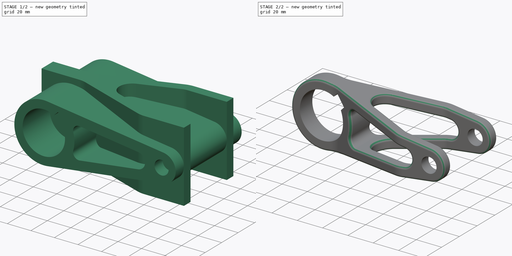
[diagram: build sequence overview — one tinted view per stage of 2, left to right]
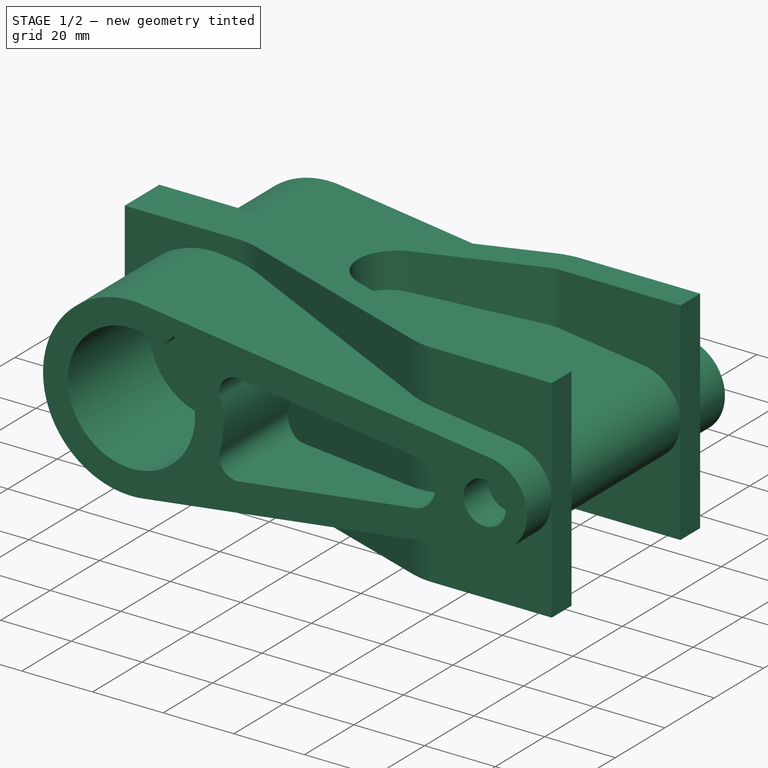
[diagram: stage 1 of 2 — iso view after this stage's code; geometry added in this stage tinted green]
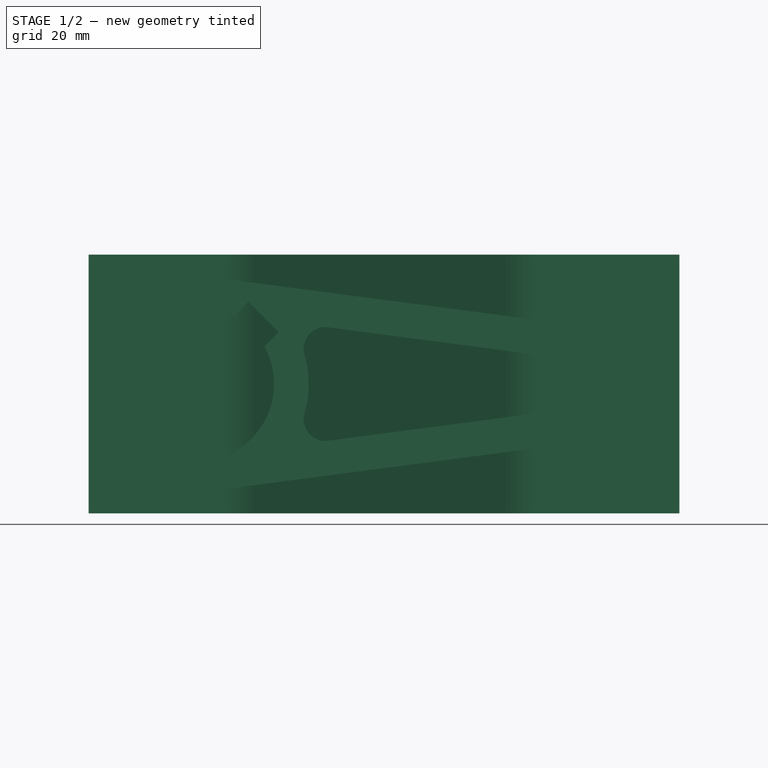
[diagram: stage 1 of 2 — front view after this stage's code; geometry added in this stage tinted green]
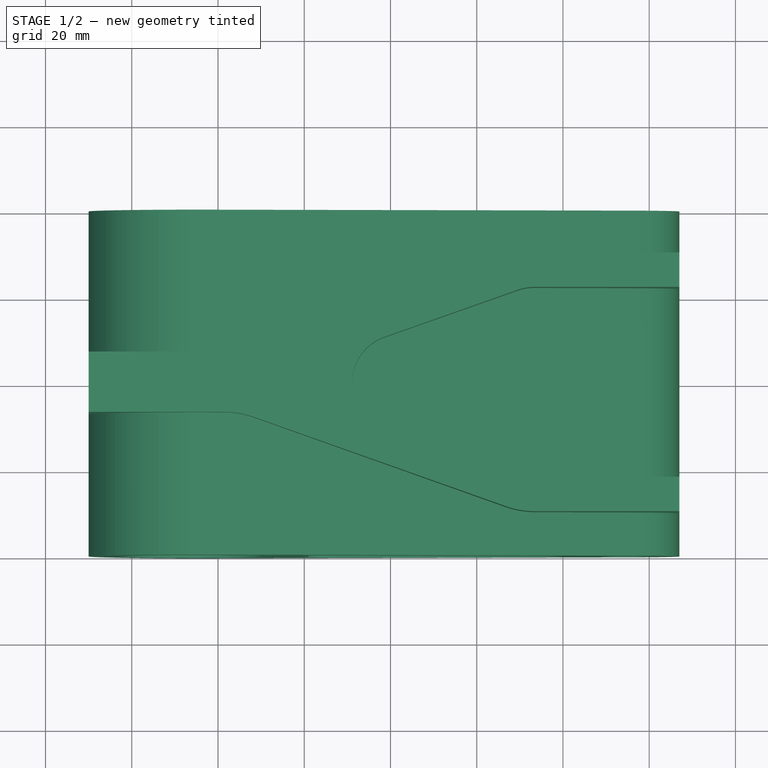
[diagram: stage 1 of 2 — top view after this stage's code; geometry added in this stage tinted green]
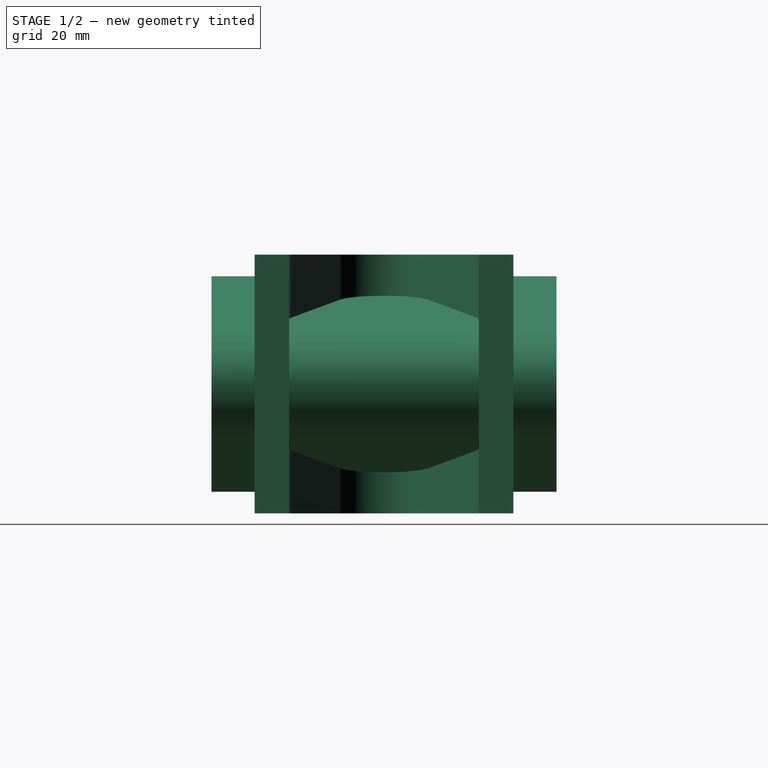
[diagram: stage 1 of 2 — right view after this stage's code; geometry added in this stage tinted green]
FCSTD DOCUMENT  (FreeCAD 1.0R39319 (Git))
Label: Mania2010
License: All rights reserved
LicenseURL: https://en.wikipedia.org/wiki/All_rights_reserved
objects: Sketcher::SketchObject×2, PartDesign::Pad×2, PartDesign::Body×2, PartDesign::Boolean×1, PartDesign::Fillet×1
note: 17 computed .brp shape members not serialized (recipe doc carries the construction recipe); baked Part::Feature solids carry a one-line shape summary decoded from their .brp

FEATURE [Sketcher::SketchObject] Sketch001
  ArcFitTolerance = 1e-06
  AttachmentSupport = -> [XY_Plane]
  FullyConstrained = true
  MakeInternals = false
  MapMode = 5
  sketch-geometry (27):
    g0: LineSegment StartX=-50 StartY=7 StartZ=0 EndX=-50 EndY=-7 EndZ=0
    g1: LineSegment StartX=-50 StartY=-7 StartZ=0 EndX=-18.4341 EndY=-7 EndZ=0
    g2: LineSegment StartX=-18.4341 StartY=7 StartZ=0 EndX=-50 EndY=7 EndZ=0
    g3: LineSegment StartX=-11.7626 StartY=8.14555 StartZ=0 EndX=46.7626 EndY=28.8544 EndZ=0
    g4: LineSegment StartX=53.4341 StartY=30 StartZ=0 EndX=87 EndY=30 EndZ=0
    g5: ArcOfCircle CenterX=-18.4341 CenterY=27 CenterZ=0 NormalX=0 NormalY=0 NormalZ=1 AngleXU=0 Radius=20 StartAngle=4.71239 EndAngle=5.05249
    g6: GeomPoint [constr] X=-15 Y=7 Z=0
    g7: ArcOfCircle CenterX=53.4341 CenterY=10 CenterZ=0 NormalX=0 NormalY=0 NormalZ=1 AngleXU=0 Radius=20 StartAngle=1.5708 EndAngle=1.91089
    g8: GeomPoint [constr] X=50 Y=30 Z=0
    g9: GeomPoint X=-25 Y=0 Z=0
    g10: ArcOfCircle CenterX=-18.4341 CenterY=-27 CenterZ=0 NormalX=0 NormalY=0 NormalZ=1 AngleXU=0 Radius=20 StartAngle=1.2307 EndAngle=1.5708
    g11: LineSegment StartX=-11.7626 StartY=-8.14555 StartZ=0 EndX=46.7626 EndY=-28.8544 EndZ=0
    g12: LineSegment StartX=53.4341 StartY=-30 StartZ=0 EndX=87 EndY=-30 EndZ=0
    g13: ArcOfCircle CenterX=53.4341 CenterY=-10 CenterZ=0 NormalX=0 NormalY=0 NormalZ=1 AngleXU=0 Radius=20 StartAngle=4.37229 EndAngle=4.71239
    g14: GeomPoint [constr] X=50 Y=-30 Z=0
    g15: LineSegment StartX=87 StartY=30 StartZ=0 EndX=87 EndY=22 EndZ=0
    g16: LineSegment StartX=87 StartY=-30 StartZ=0 EndX=87 EndY=-22 EndZ=0
    g17: LineSegment StartX=87 StartY=22 StartZ=0 EndX=53.2624 EndY=22 EndZ=0
    g18: LineSegment StartX=49.5931 StartY=21.3699 StartZ=0 EndX=18.5061 EndY=10.3699 EndZ=0
    g19: LineSegment StartX=18.5061 StartY=-10.3699 StartZ=0 EndX=49.5931 EndY=-21.3699 EndZ=0
    g20: LineSegment StartX=53.2624 StartY=-22 StartZ=0 EndX=87 EndY=-22 EndZ=0
    g21: ArcOfCircle CenterX=22.1755 CenterY=0 CenterZ=0 NormalX=0 NormalY=0 NormalZ=1 AngleXU=0 Radius=11 StartAngle=1.91089 EndAngle=4.37229
    g22: GeomPoint [constr] X=-10.8003 Y=0 Z=0
    g23: ArcOfCircle CenterX=53.2624 CenterY=11 CenterZ=0 NormalX=0 NormalY=0 NormalZ=1 AngleXU=0 Radius=11 StartAngle=1.5708 EndAngle=1.91089
    g24: GeomPoint [constr] X=51.3737 Y=22 Z=0
    g25: ArcOfCircle CenterX=53.2624 CenterY=-11 CenterZ=0 NormalX=0 NormalY=0 NormalZ=1 AngleXU=0 Radius=11 StartAngle=4.37229 EndAngle=4.71239
    g26: GeomPoint [constr] X=51.3737 Y=-22 Z=0
  constraints (65):
    c: Coincident(g0,g1)
    c: Coincident(g2,g0)
    c: Horizontal(g1)
    c: Horizontal(g2)
    c: DistanceY(g0,g0) = 14
    c: Symmetric(g0,g0,g-1)
    c: Horizontal(g4)
    c: PointOnObject(g6,g3)
    c: PointOnObject(g6,g2)
    c: Tangent(g3,g5) = -1.5708
    c: Tangent(g2,g5) = 1.5708
    c: Distance(g-1,g0) = 50
    c: Distance(g6,g0) = 35
    c: Radius(g5) = 20
    c: PointOnObject(g8,g4)
    c: PointOnObject(g8,g3)
    c: Tangent(g4,g7) = 1.5708
    c: Tangent(g3,g7) = 1.5708
    c: Radius(g7) = 20
    c: PointOnObject(g9,g-1)
    c: Distance(g9,g0) = 25
    c: DistanceX(g9,g8) = 75
    c: DistanceX(g9,g4) = 112
    c: DistanceY(g-1,g4) = 30
    c: Tangent(g1,g10) = 1.5708
    c: Horizontal(g12)
    c: Equal(g5,g10)
    c: Symmetric(g12,g4,g-1)
    c: Tangent(g10,g11) = 1.5708
    c: PointOnObject(g14,g12)
    c: PointOnObject(g14,g11)
    c: Tangent(g12,g13) = -1.5708
    c: Tangent(g11,g13) = -1.5708
    c: Equal(g7,g13)
    c: Equal(g1,g2)
    c: Equal(g11,g3)
    c: Coincident(g15,g4)
    c: Vertical(g15)
    c: DistanceY(g15,g15) = 8
    c: Coincident(g16,g12)
    c: Equal(g15,g16)
    c: Vertical(g16)
    c: Coincident(g15,g17)
    c: Horizontal(g17)
    c: PointOnObject(g22,g-1)
    c: Coincident(g20,g16)
    c: Horizontal(g20)
    c: PointOnObject(g22,g18)
    c: PointOnObject(g22,g19)
    c: Tangent(g18,g21) = -1.5708
    c: Tangent(g19,g21) = -1.5708
    c: PointOnObject(g24,g18)
    c: PointOnObject(g24,g17)
    c: Tangent(g18,g23) = -1.5708
    c: Tangent(g17,g23) = -1.5708
    c: PointOnObject(g26,g19)
    c: PointOnObject(g26,g20)
    c: Tangent(g19,g25) = -1.5708
    c: Tangent(g20,g25) = -1.5708
    c: Equal(g23,g21)
    c: Equal(g21,g25)
    c: Tangent(g23,g-1)
    c: PointOnObject(g21,g-1)
    c: Parallel(g18,g3)
    c: Distance(g18,g3) = 8
FEATURE [PartDesign::Pad] Pad
  Direction = (0,0,1)
  Length = 60
  Length2 = 10
  Midplane = true
  Profile = -> Sketch001
  ReferenceAxis = -> Sketch001 [N_Axis]
  Refine = true
  Suppressed = false
  Type = 0
FEATURE [Sketcher::SketchObject] Sketch
  ArcFitTolerance = 1e-06
  AttachmentSupport = -> [XZ_Plane001]
  FullyConstrained = true
  MakeInternals = false
  MapMode = 5
  Placement = pos=(0,0,0) rot=(1,0,0;1.5708rad)
  sketch-geometry (22):
    g0: GeomPoint X=-25 Y=0 Z=0
    g1: ArcOfCircle CenterX=-25 CenterY=0 CenterZ=0 NormalX=0 NormalY=0 NormalZ=1 AngleXU=0 Radius=25 StartAngle=1.44043 EndAngle=4.84276
    g2: ArcOfCircle CenterX=75 CenterY=0 CenterZ=0 NormalX=0 NormalY=0 NormalZ=1 AngleXU=0 Radius=12 StartAngle=4.84276 EndAngle=7.72361
    g3: LineSegment StartX=-21.75 StartY=24.7878 StartZ=0 EndX=76.56 EndY=11.8982 EndZ=0
    g4: LineSegment StartX=76.56 StartY=-11.8982 StartZ=0 EndX=-21.75 EndY=-24.7878 EndZ=0
    g5: Circle CenterX=75 CenterY=0 CenterZ=0 NormalX=0 NormalY=0 NormalZ=1 AngleXU=0 Radius=6
    g6: ArcOfCircle CenterX=-25 CenterY=0 CenterZ=0 NormalX=0 NormalY=0 NormalZ=1 AngleXU=0 Radius=18 StartAngle=1.06688 EndAngle=6.7871
    g7: LineSegment [constr] StartX=-25 StartY=0 StartZ=0 EndX=0 EndY=25 EndZ=0
    g8: LineSegment StartX=-16.3085 StartY=15.7626 StartZ=0 EndX=-12.9792 EndY=19.0919 EndZ=0
    g9: LineSegment StartX=-12.9792 StartY=19.0919 StartZ=0 EndX=-5.90812 EndY=12.0208 EndZ=0
    g10: LineSegment StartX=-5.90812 StartY=12.0208 StartZ=0 EndX=-9.23745 EndY=8.69149 EndZ=0
    g11: LineSegment [constr] StartX=-25 StartY=0 StartZ=0 EndX=-37.7279 EndY=-12.7279 EndZ=0
    g12: LineSegment StartX=5.51112 StartY=13.1451 StartZ=0 EndX=55.18 EndY=6.63289 EndZ=0
    g13: LineSegment StartX=55.18 StartY=-6.63289 StartZ=0 EndX=5.51112 EndY=-13.1451 EndZ=0
    g14: ArcOfCircle CenterX=54.3103 CenterY=0 CenterZ=0 NormalX=0 NormalY=0 NormalZ=1 AngleXU=0 Radius=6.68966 StartAngle=4.84276 EndAngle=7.72361
    g15: GeomPoint X=61 Y=0 Z=0
    g16: GeomPoint X=69 Y=0 Z=0
    g17: ArcOfCircle CenterX=4.86112 CenterY=8.18753 CenterZ=0 NormalX=0 NormalY=0 NormalZ=1 AngleXU=0 Radius=5 StartAngle=1.44043 EndAngle=3.41802
    g18: ArcOfCircle CenterX=4.86112 CenterY=-8.18753 CenterZ=0 NormalX=0 NormalY=0 NormalZ=1 AngleXU=0 Radius=5 StartAngle=2.86517 EndAngle=4.84276
    g19: ArcOfCircle CenterX=-24 CenterY=0 CenterZ=0 NormalX=0 NormalY=0 NormalZ=1 AngleXU=0 Radius=25 StartAngle=6.00676 EndAngle=6.55961
    g20: GeomPoint X=-7 Y=0 Z=0
    g21: GeomPoint X=1 Y=0 Z=0
  constraints (54):
    c: PointOnObject(g0,g-1)
    c: Coincident(g1,g0)
    c: Radius(g1) = 25
    c: PointOnObject(g2,g-1)
    c: DistanceX(g0,g2) = 100
    c: Radius(g2) = 12
    c: Tangent(g2,g3) = 1.5708
    c: Tangent(g2,g4) = 1.5708
    c: Tangent(g1,g4) = 1.5708
    c: Tangent(g1,g3) = 1.5708
    c: Diameter(g5) = 12
    c: Coincident(g5,g2)
    c: Diameter(g6) = 36
    c: Coincident(g6,g0)
    c: Coincident(g7,g0)
    c: PointOnObject(g7,g-2)
    c: Angle(g-1,g7) = 0.785398
    c: Coincident(g8,g9)
    c: Coincident(g9,g10)
    c: Parallel(g8,g7)
    c: Parallel(g10,g7)
    c: Distance(g9,g9) = 10
    c: Coincident(g6,g10)
    c: Coincident(g6,g8)
    c: Coincident(g11,g0)
    c: PointOnObject(g11,g6)
    c: Angle(g7,g11) = 3.14159
    c: Distance(g11,g9) = 40
    c: Symmetric(g8,g9,g7)
    c: DistanceX(g0,g-1) = 25
    c: Equal(g12,g13)
    c: Symmetric(g12,g13,g-1)
    c: Coincident(g14,g13)
    c: PointOnObject(g15,g14)
    c: PointOnObject(g15,g-1)
    c: PointOnObject(g16,g5)
    c: PointOnObject(g16,g-1)
    c: DistanceX(g15,g16) = 8
    c: Tangent(g14,g12) = 1.5708
    c: Parallel(g12,g3)
    c: Distance(g12,g3) = 8
    c: Equal(g17,g18)
    c: Radius(g17) = 5
    c: PointOnObject(g19,g-1)
    c: Tangent(g17,g12) = 1.5708
    c: PointOnObject(g20,g6)
    c: PointOnObject(g20,g-1)
    c: PointOnObject(g21,g19)
    c: PointOnObject(g21,g-1)
    c: DistanceX(g20,g21) = 8
    c: Tangent(g19,g17) = 1.5708
    c: Tangent(g19,g18) = 1.5708
    c: Tangent(g18,g13) = 1.5708
    c: Radius(g19) = 25
FEATURE [PartDesign::Pad] Pad001
  Direction = (0,-1,2e-16)
  Length = 80
  Length2 = 10
  Midplane = true
  Placement = pos=(0,0,0) rot=(1,0,0;1.5708rad)
  Profile = -> Sketch
  ReferenceAxis = -> Sketch [N_Axis]
  Refine = true
  Suppressed = false
  Type = 0
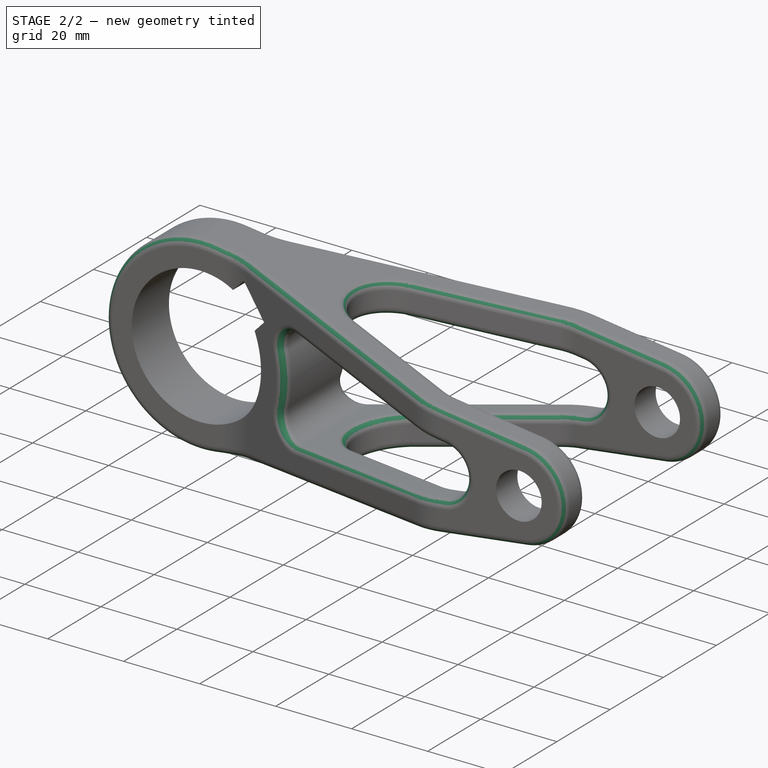
[diagram: stage 2 of 2 — iso view after this stage's code; geometry added in this stage tinted green]
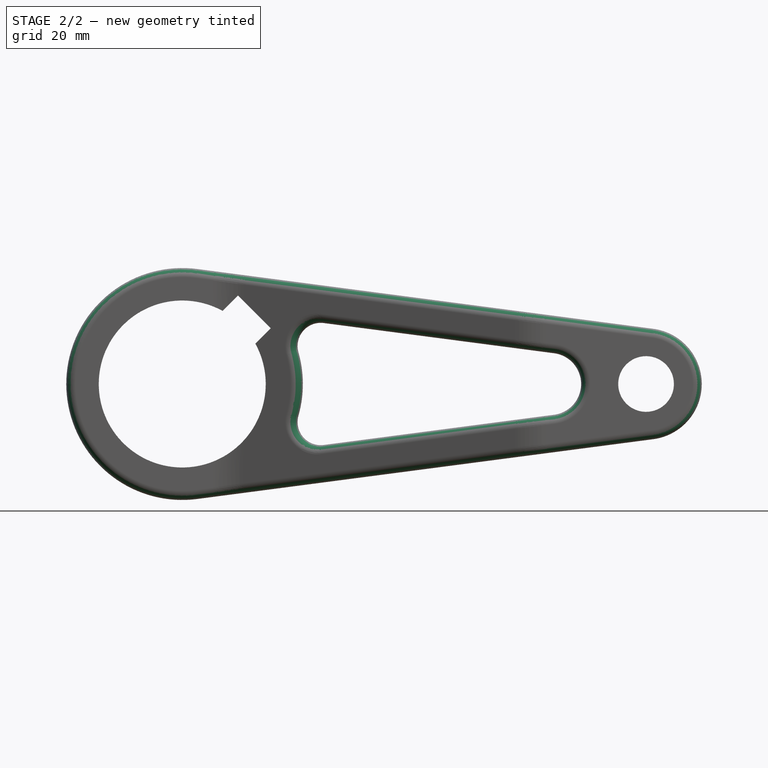
[diagram: stage 2 of 2 — front view after this stage's code; geometry added in this stage tinted green]
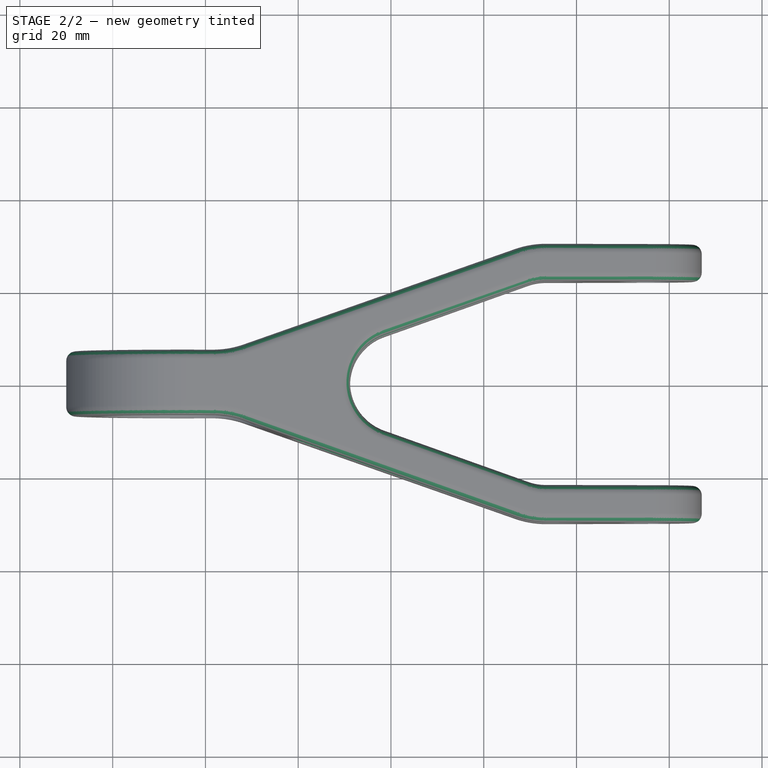
[diagram: stage 2 of 2 — top view after this stage's code; geometry added in this stage tinted green]
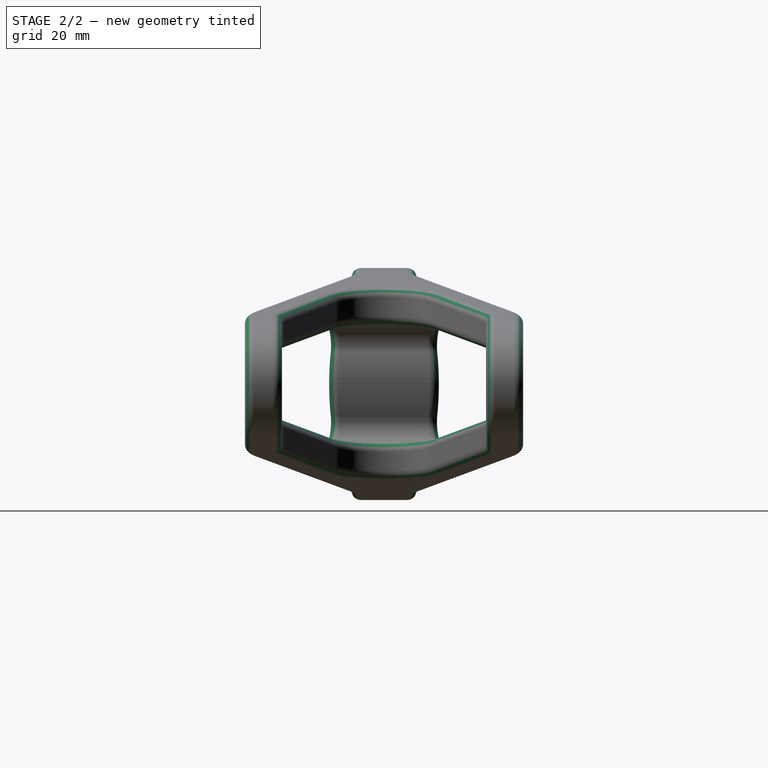
[diagram: stage 2 of 2 — right view after this stage's code; geometry added in this stage tinted green]
FEATURE [PartDesign::Body] Body001
  AllowCompound = false
  Group = -> [Sketch,Pad001]
  Origin = -> Origin001
  Tip = -> Pad001
FEATURE [PartDesign::Boolean] Boolean
  BaseFeature = -> Pad
  Group = -> [Body001]
  Refine = true
  Suppressed = false
  Type = 2
  UsePlacement = true
FEATURE [PartDesign::Fillet] Fillet
  Base = -> Boolean [Edge31,Edge132,Edge71,Edge65,Edge29,Edge122]
  BaseFeature = -> Boolean
  Radius = 2
  Refine = true
  SupportTransform = false
  Suppressed = false
  UseAllEdges = false
FEATURE [PartDesign::Body] Body
  AllowCompound = false
  Group = -> [Sketch001,Pad,Boolean,Fillet]
  Origin = -> Origin
  Tip = -> Fillet
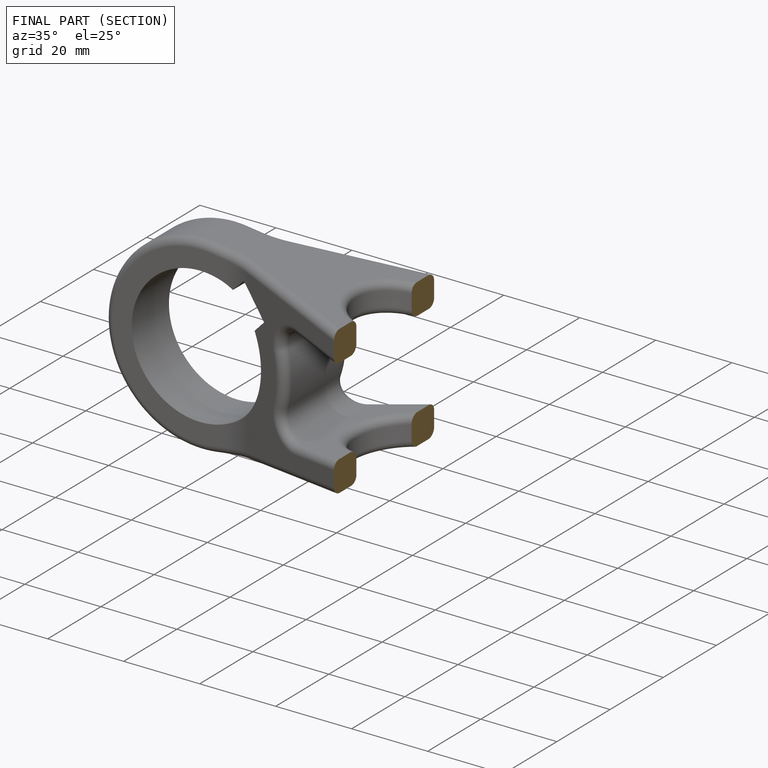
[diagram: finished part — half-section view (interior)]
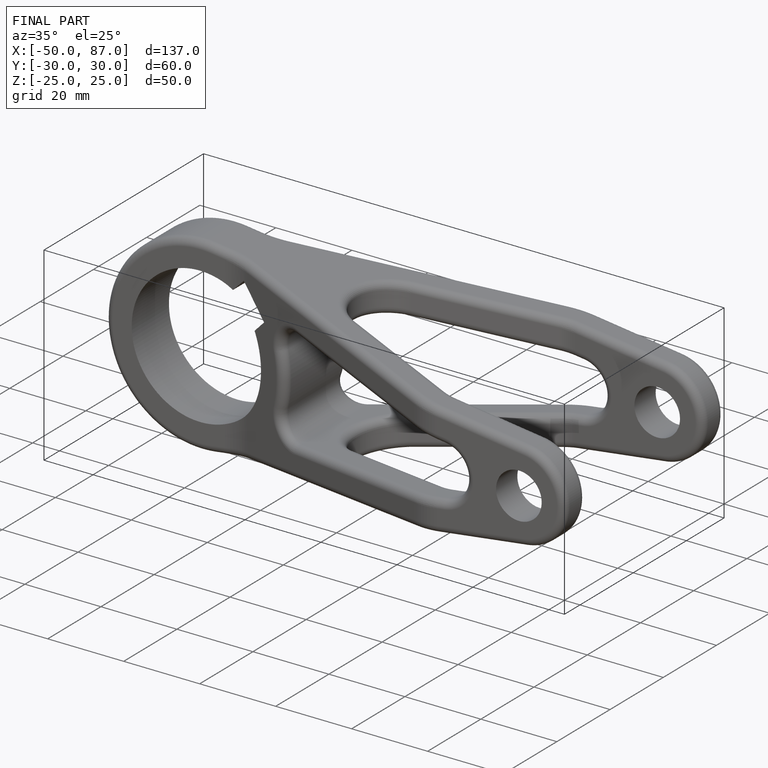
[diagram: finished part — iso view with bounding-box wireframe]
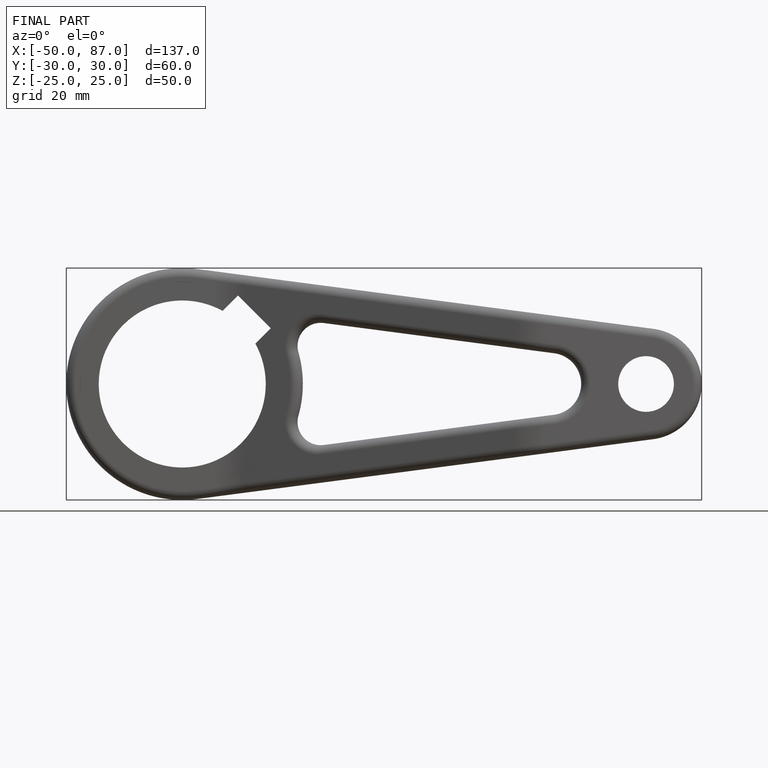
[diagram: finished part — front view with bounding-box wireframe]
